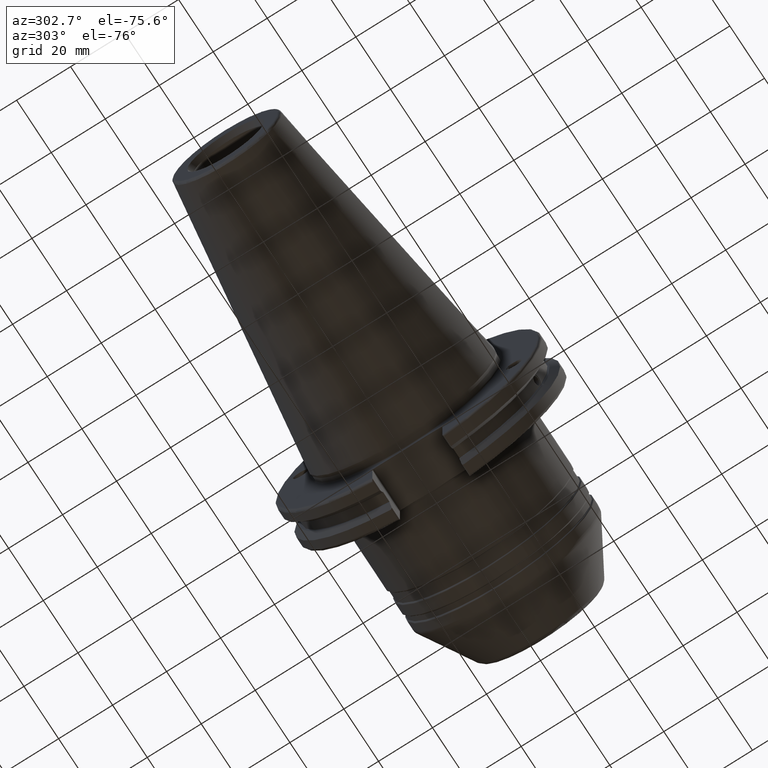
[diagram: clean part render]
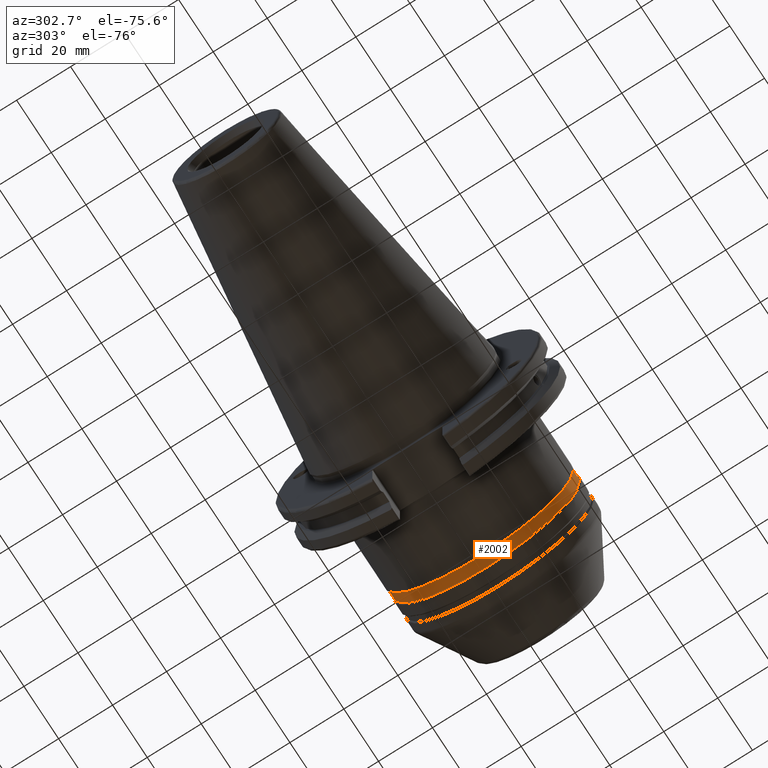
[diagram: same view with one face highlighted and labeled with its STEP entity id]
A machine part, auxiliary view. The second image highlights one B-rep face of the part: STEP entity #2002.
In plain terms, the highlighted cylindrical surface (bore or boss wall) has radius 34.45 mm, axis along (1, 0, 0).
Its self-contained STEP definition (entity closure, byte-faithful):
#171=FACE_OUTER_BOUND('',#275,.T.);
#275=EDGE_LOOP('',(#1377,#1378,#1379,#1380,#1381,#1382,#1383,#1384));
#391=LINE('',#3226,#492);
#492=VECTOR('',#2473,34.45);
#612=CIRCLE('',#2148,34.45);
#617=CIRCLE('',#2153,34.45);
#618=CIRCLE('',#2154,34.45);
#619=CIRCLE('',#2156,34.45);
#620=CIRCLE('',#2157,34.45);
#621=CIRCLE('',#2158,34.45);
#782=VERTEX_POINT('',#3211);
#783=VERTEX_POINT('',#3212);
#787=VERTEX_POINT('',#3221);
#788=VERTEX_POINT('',#3225);
#789=VERTEX_POINT('',#3227);
#790=VERTEX_POINT('',#3229);
#1023=EDGE_CURVE('',#782,#783,#612,.T.);
#1028=EDGE_CURVE('',#783,#787,#617,.T.);
#1029=EDGE_CURVE('',#787,#782,#618,.T.);
#1030=EDGE_CURVE('',#787,#788,#391,.T.);
#1031=EDGE_CURVE('',#789,#788,#619,.T.);
#1032=EDGE_CURVE('',#790,#789,#620,.T.);
#1033=EDGE_CURVE('',#788,#790,#621,.T.);
#1377=ORIENTED_EDGE('',*,*,#1023,.F.);
#1378=ORIENTED_EDGE('',*,*,#1029,.F.);
#1379=ORIENTED_EDGE('',*,*,#1030,.T.);
#1380=ORIENTED_EDGE('',*,*,#1031,.F.);
#1381=ORIENTED_EDGE('',*,*,#1032,.F.);
#1382=ORIENTED_EDGE('',*,*,#1033,.F.);
#1383=ORIENTED_EDGE('',*,*,#1030,.F.);
#1384=ORIENTED_EDGE('',*,*,#1028,.F.);
#1966=CYLINDRICAL_SURFACE('',#2155,34.45);
#2002=ADVANCED_FACE('',(#171),#1966,.T.);
#2148=AXIS2_PLACEMENT_3D('',#3213,#2457,#2458);
#2153=AXIS2_PLACEMENT_3D('',#3222,#2467,#2468);
#2154=AXIS2_PLACEMENT_3D('',#3223,#2469,#2470);
#2155=AXIS2_PLACEMENT_3D('',#3224,#2471,#2472);
#2156=AXIS2_PLACEMENT_3D('',#3228,#2474,#2475);
#2157=AXIS2_PLACEMENT_3D('',#3230,#2476,#2477);
#2158=AXIS2_PLACEMENT_3D('',#3231,#2478,#2479);
#2457=DIRECTION('center_axis',(1.,0.,0.));
#2458=DIRECTION('ref_axis',(0.,-1.,1.83697019872103E-16));
#2467=DIRECTION('center_axis',(1.,0.,0.));
#2468=DIRECTION('ref_axis',(0.,-1.,1.83697019872103E-16));
#2469=DIRECTION('center_axis',(1.,0.,0.));
#2470=DIRECTION('ref_axis',(0.,-1.,1.83697019872103E-16));
#2471=DIRECTION('center_axis',(1.,0.,0.));
#2472=DIRECTION('ref_axis',(0.,1.,0.));
#2473=DIRECTION('',(-1.,0.,0.));
#2474=DIRECTION('center_axis',(-1.,0.,0.));
#2475=DIRECTION('ref_axis',(0.,-1.,1.83697019872103E-16));
#2476=DIRECTION('center_axis',(-1.,0.,0.));
#2477=DIRECTION('ref_axis',(0.,-1.,1.83697019872103E-16));
#2478=DIRECTION('center_axis',(-1.,0.,0.));
#2479=DIRECTION('ref_axis',(0.,-1.,1.83697019872103E-16));
#3211=CARTESIAN_POINT('',(48.8845299461621,34.45,-2.10945411153132E-15));
#3212=CARTESIAN_POINT('',(48.8845299461621,-4.21890822306263E-15,34.45));
#3213=CARTESIAN_POINT('Origin',(48.8845299461621,0.,0.));
#3221=CARTESIAN_POINT('',(48.8845299461621,-34.45,-4.21890822306263E-15));
#3222=CARTESIAN_POINT('Origin',(48.8845299461621,0.,0.));
#3223=CARTESIAN_POINT('Origin',(48.8845299461621,0.,0.));
#3224=CARTESIAN_POINT('Origin',(47.,0.,0.));
#3225=CARTESIAN_POINT('',(45.1154700538379,-34.45,-4.21890822306263E-15));
#3226=CARTESIAN_POINT('',(47.,-34.45,-4.21890822306263E-15));
#3227=CARTESIAN_POINT('',(45.1154700538379,34.45,-1.05472705576566E-14));
#3228=CARTESIAN_POINT('Origin',(45.1154700538379,0.,0.));
#3229=CARTESIAN_POINT('',(45.1154700538379,-4.21890822306263E-15,34.45));
#3230=CARTESIAN_POINT('Origin',(45.1154700538379,0.,0.));
#3231=CARTESIAN_POINT('Origin',(45.1154700538379,0.,0.));